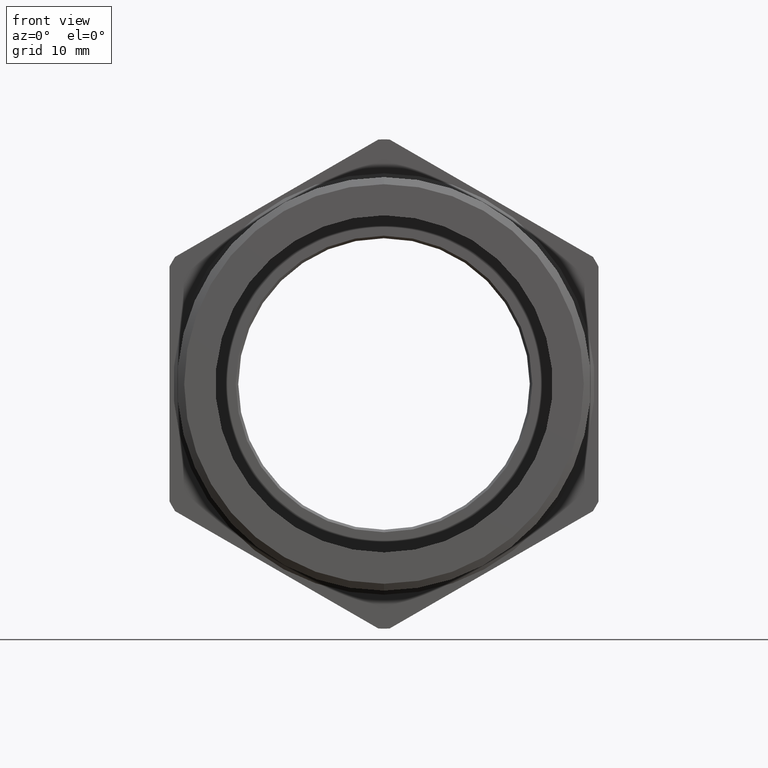
[diagram: clean part render]
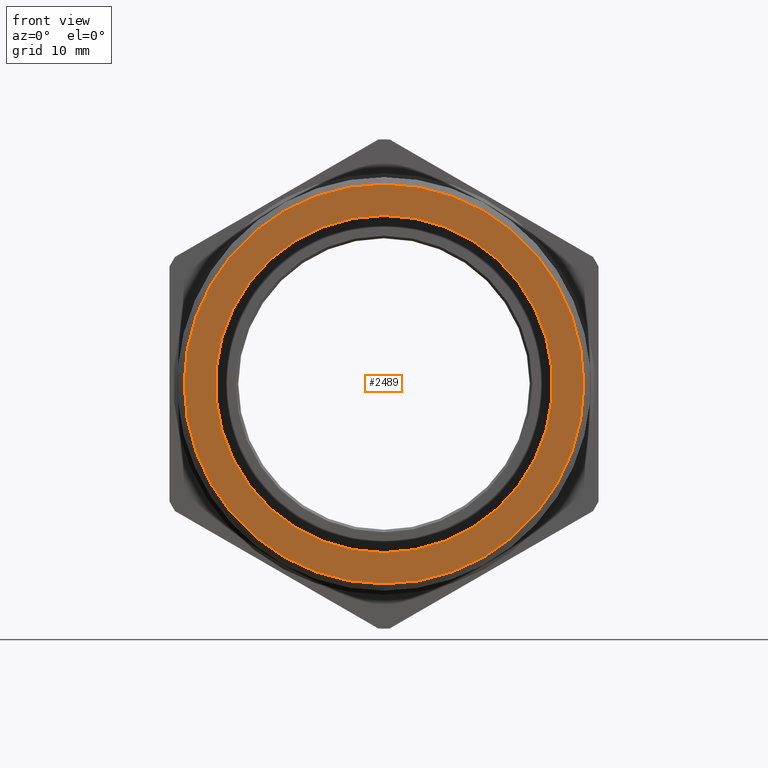
[diagram: same view with one face highlighted and labeled with its STEP entity id]
A machine part, front view. The second image highlights one B-rep face of the part: STEP entity #2489.
In plain terms, the highlighted planar face has unit normal (0, -1, -0).
Its self-contained STEP definition (entity closure, byte-faithful):
#84 = DIRECTION ( 'NONE',  ( 0.0000000000000000000, 0.0000000000000000000, -1.000000000000000000 ) ) ;
#85 = DIRECTION ( 'NONE',  ( -0.0000000000000000000, -1.000000000000000000, -0.0000000000000000000 ) ) ;
#86 = CARTESIAN_POINT ( 'NONE',  ( 0.0000000000000000000, 4.268512490100411300E-018, 0.0000000000000000000 ) ) ;
#87 = AXIS2_PLACEMENT_3D ( 'NONE', #86, #85, #84 ) ;
#88 = CIRCLE ( 'NONE', #87, 0.7776287765502968300 ) ;
#93 = CARTESIAN_POINT ( 'NONE',  ( 0.0000000000000000000, 4.268512490100411300E-018, -0.7776287765502969400 ) ) ;
#579 = CIRCLE ( 'NONE', #635, 0.6560000000000001400 ) ;
#626 = CARTESIAN_POINT ( 'NONE',  ( 8.033683002406639000E-017, 0.0000000000000000000, 0.6560000000000001400 ) ) ;
#631 = CARTESIAN_POINT ( 'NONE',  ( 0.0000000000000000000, 0.0000000000000000000, -0.6560000000000001400 ) ) ;
#632 = DIRECTION ( 'NONE',  ( 0.0000000000000000000, 0.0000000000000000000, -1.000000000000000000 ) ) ;
#633 = DIRECTION ( 'NONE',  ( -0.0000000000000000000, -1.000000000000000000, -0.0000000000000000000 ) ) ;
#634 = CARTESIAN_POINT ( 'NONE',  ( 0.0000000000000000000, 0.0000000000000000000, 0.0000000000000000000 ) ) ;
#635 = AXIS2_PLACEMENT_3D ( 'NONE', #634, #633, #632 ) ;
#932 = DIRECTION ( 'NONE',  ( 0.0000000000000000000, 0.0000000000000000000, -1.000000000000000000 ) ) ;
#933 = DIRECTION ( 'NONE',  ( -0.0000000000000000000, -1.000000000000000000, -0.0000000000000000000 ) ) ;
#934 = AXIS2_PLACEMENT_3D ( 'NONE', #939, #933, #932 ) ;
#935 = CIRCLE ( 'NONE', #934, 0.6560000000000001400 ) ;
#936 = DIRECTION ( 'NONE',  ( 0.0000000000000000000, 0.0000000000000000000, -1.000000000000000000 ) ) ;
#937 = DIRECTION ( 'NONE',  ( 0.0000000000000000000, -1.000000000000000000, -0.0000000000000000000 ) ) ;
#938 = AXIS2_PLACEMENT_3D ( 'NONE', #940, #937, #936 ) ;
#939 = CARTESIAN_POINT ( 'NONE',  ( 0.0000000000000000000, 0.0000000000000000000, 0.0000000000000000000 ) ) ;
#940 = CARTESIAN_POINT ( 'NONE',  ( 0.6560000000000001400, 3.773583731800357500E-018, 0.0000000000000000000 ) ) ;
#941 = PLANE ( 'NONE',  #938 ) ;
#942 = FACE_OUTER_BOUND ( 'NONE', #2494, .T. ) ;
#943 = FACE_BOUND ( 'NONE', #2490, .T. ) ;
#1015 = DIRECTION ( 'NONE',  ( 0.0000000000000000000, 0.0000000000000000000, -1.000000000000000000 ) ) ;
#1016 = DIRECTION ( 'NONE',  ( -0.0000000000000000000, -1.000000000000000000, -0.0000000000000000000 ) ) ;
#1017 = CARTESIAN_POINT ( 'NONE',  ( 0.0000000000000000000, 4.268512490100411300E-018, 0.0000000000000000000 ) ) ;
#1018 = AXIS2_PLACEMENT_3D ( 'NONE', #1017, #1016, #1015 ) ;
#1019 = CIRCLE ( 'NONE', #1018, 0.7776287765502968300 ) ;
#2017 = VERTEX_POINT ( 'NONE', #3300 ) ;
#2054 = VERTEX_POINT ( 'NONE', #93 ) ;
#2055 = EDGE_CURVE ( 'NONE', #2054, #2017, #88, .T. ) ;
#2315 = EDGE_CURVE ( 'NONE', #2318, #2316, #579, .T. ) ;
#2316 = VERTEX_POINT ( 'NONE', #631 ) ;
#2318 = VERTEX_POINT ( 'NONE', #626 ) ;
#2489 = ADVANCED_FACE ( 'NONE', ( #943, #942 ), #941, .T. ) ;
#2490 = EDGE_LOOP ( 'NONE', ( #2491, #2493 ) ) ;
#2491 = ORIENTED_EDGE ( 'NONE', *, *, #2492, .F. ) ;
#2492 = EDGE_CURVE ( 'NONE', #2316, #2318, #935, .T. ) ;
#2493 = ORIENTED_EDGE ( 'NONE', *, *, #2315, .F. ) ;
#2494 = EDGE_LOOP ( 'NONE', ( #2495, #2547 ) ) ;
#2495 = ORIENTED_EDGE ( 'NONE', *, *, #2055, .T. ) ;
#2547 = ORIENTED_EDGE ( 'NONE', *, *, #2548, .T. ) ;
#2548 = EDGE_CURVE ( 'NONE', #2017, #2054, #1019, .T. ) ;
#3300 = CARTESIAN_POINT ( 'NONE',  ( 9.523205921271935100E-017, 4.268512490100411300E-018, 0.7776287765502969400 ) ) ;